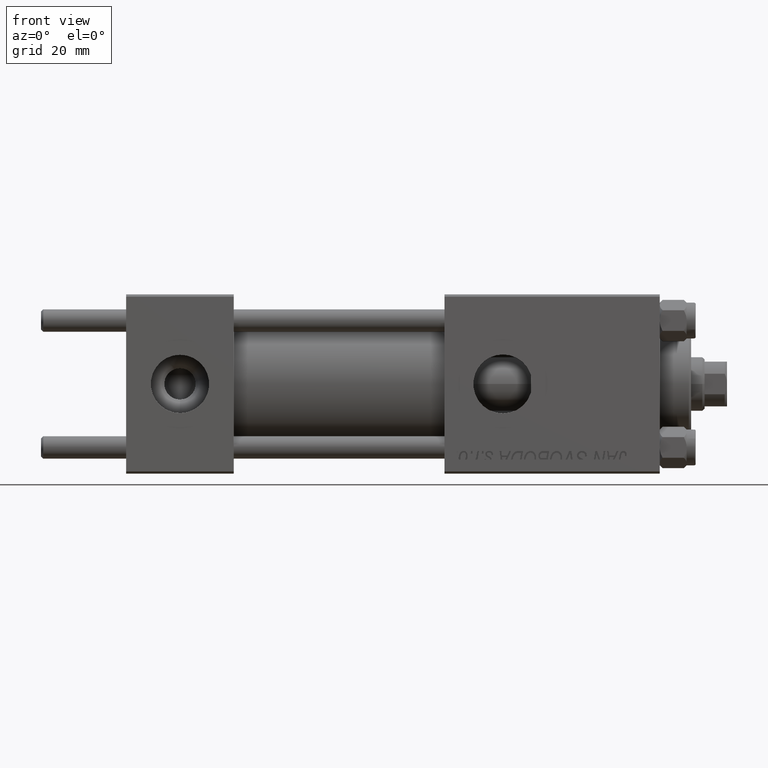
[diagram: clean part render]
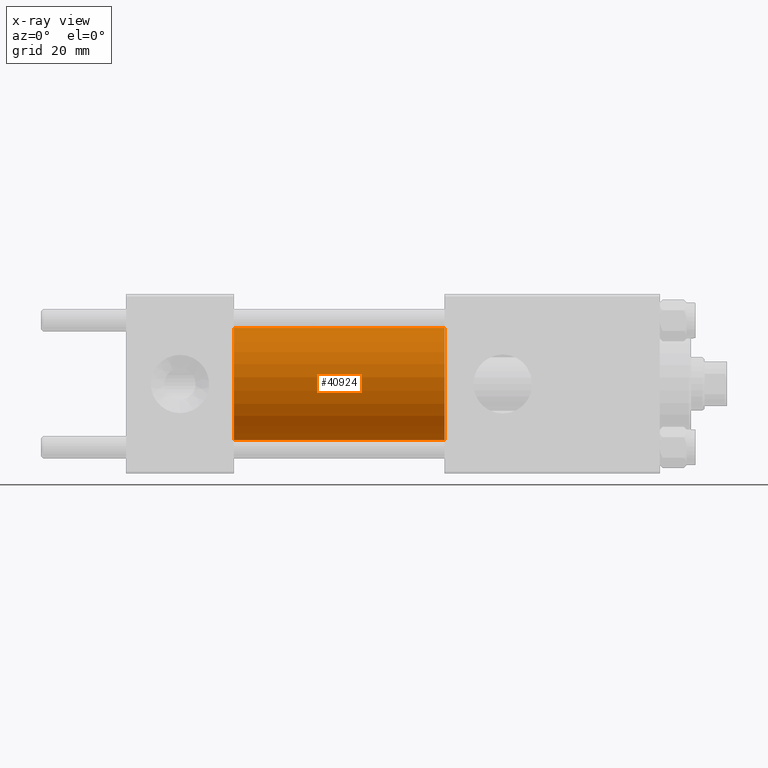
[diagram: x-ray — body ghosted, one internal face saturated and labeled with its STEP entity id]
A machine part, front view, then the same camera in x-ray: the body is ghosted and one INTERNAL B-rep face — a face not visible from any outside direction — is saturated and labeled: STEP entity #40924.
In plain terms, the highlighted cylindrical surface (partial cylindrical patch) has radius 12.5 mm, axis along (-1, -0, -0).
Its self-contained STEP definition (entity closure, byte-faithful):
#536 = EDGE_CURVE ( 'NONE', #23245, #11691, #17225, .T. ) ;
#2189 = CARTESIAN_POINT ( 'NONE',  ( 24.00000000000000000, 1.530808498934191127E-15, -12.49999999999999645 ) ) ;
#2470 = DIRECTION ( 'NONE',  ( 0.000000000000000000, 0.000000000000000000, 1.000000000000000000 ) ) ;
#2755 = EDGE_CURVE ( 'NONE', #26389, #7489, #29213, .T. ) ;
#2771 = DIRECTION ( 'NONE',  ( -1.000000000000000000, -0.000000000000000000, -0.000000000000000000 ) ) ;
#4766 = CARTESIAN_POINT ( 'NONE',  ( 71.00000000000001421, 0.000000000000000000, 0.000000000000000000 ) ) ;
#5263 = DIRECTION ( 'NONE',  ( -1.000000000000000000, -0.000000000000000000, -0.000000000000000000 ) ) ;
#7489 = VERTEX_POINT ( 'NONE', #9648 ) ;
#9648 = CARTESIAN_POINT ( 'NONE',  ( 24.00000000000000000, 0.000000000000000000, 12.49999999999999645 ) ) ;
#10121 = CARTESIAN_POINT ( 'NONE',  ( 24.00000000000000000, 0.000000000000000000, 0.000000000000000000 ) ) ;
#11691 = VERTEX_POINT ( 'NONE', #2189 ) ;
#11884 = CARTESIAN_POINT ( 'NONE',  ( 71.00000000000001421, 1.530808498934191127E-15, -12.49999999999999645 ) ) ;
#12174 = AXIS2_PLACEMENT_3D ( 'NONE', #28427, #5263, #2470 ) ;
#12674 = ORIENTED_EDGE ( 'NONE', *, *, #36296, .T. ) ;
#13089 = CYLINDRICAL_SURFACE ( 'NONE', #12174, 12.49999999999999645 ) ;
#16568 = VECTOR ( 'NONE', #35607, 1000.000000000000000 ) ;
#17225 = LINE ( 'NONE', #24281, #16568 ) ;
#19044 = ORIENTED_EDGE ( 'NONE', *, *, #2755, .F. ) ;
#20124 = DIRECTION ( 'NONE',  ( 0.000000000000000000, 0.000000000000000000, -1.000000000000000000 ) ) ;
#22514 = ORIENTED_EDGE ( 'NONE', *, *, #536, .T. ) ;
#22525 = ORIENTED_EDGE ( 'NONE', *, *, #25140, .F. ) ;
#23245 = VERTEX_POINT ( 'NONE', #11884 ) ;
#24281 = CARTESIAN_POINT ( 'NONE',  ( 71.00000000000001421, 1.530808498934191127E-15, -12.49999999999999645 ) ) ;
#25140 = EDGE_CURVE ( 'NONE', #7489, #11691, #30881, .T. ) ;
#26389 = VERTEX_POINT ( 'NONE', #28218 ) ;
#27391 = EDGE_LOOP ( 'NONE', ( #12674, #22514, #22525, #19044 ) ) ;
#28080 = CIRCLE ( 'NONE', #47377, 12.49999999999999645 ) ;
#28218 = CARTESIAN_POINT ( 'NONE',  ( 71.00000000000001421, 0.000000000000000000, 12.49999999999999645 ) ) ;
#28427 = CARTESIAN_POINT ( 'NONE',  ( 71.00000000000001421, 0.000000000000000000, 0.000000000000000000 ) ) ;
#29213 = LINE ( 'NONE', #48836, #47977 ) ;
#30881 = CIRCLE ( 'NONE', #40550, 12.49999999999999645 ) ;
#33189 = FACE_OUTER_BOUND ( 'NONE', #27391, .T. ) ;
#34986 = DIRECTION ( 'NONE',  ( 1.000000000000000000, 0.000000000000000000, 0.000000000000000000 ) ) ;
#35607 = DIRECTION ( 'NONE',  ( -1.000000000000000000, -0.000000000000000000, -0.000000000000000000 ) ) ;
#36296 = EDGE_CURVE ( 'NONE', #26389, #23245, #28080, .T. ) ;
#36558 = DIRECTION ( 'NONE',  ( 0.000000000000000000, 0.000000000000000000, -1.000000000000000000 ) ) ;
#40550 = AXIS2_PLACEMENT_3D ( 'NONE', #10121, #48140, #36558 ) ;
#40924 = ADVANCED_FACE ( 'NONE', ( #33189 ), #13089, .F. ) ;
#47377 = AXIS2_PLACEMENT_3D ( 'NONE', #4766, #34986, #20124 ) ;
#47977 = VECTOR ( 'NONE', #2771, 1000.000000000000000 ) ;
#48140 = DIRECTION ( 'NONE',  ( 1.000000000000000000, 0.000000000000000000, 0.000000000000000000 ) ) ;
#48836 = CARTESIAN_POINT ( 'NONE',  ( 71.00000000000001421, 0.000000000000000000, 12.49999999999999645 ) ) ;